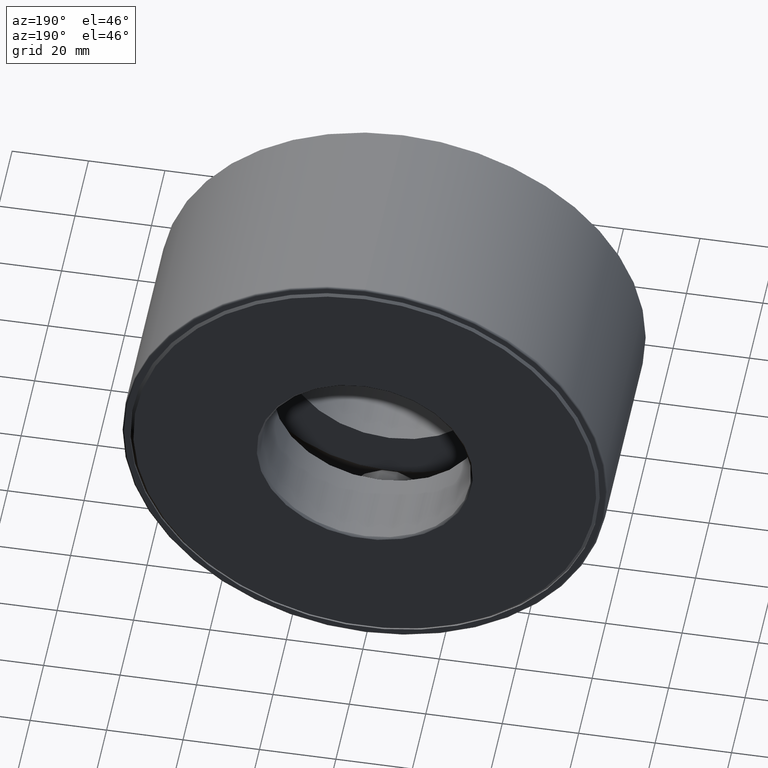
[diagram: clean part render]
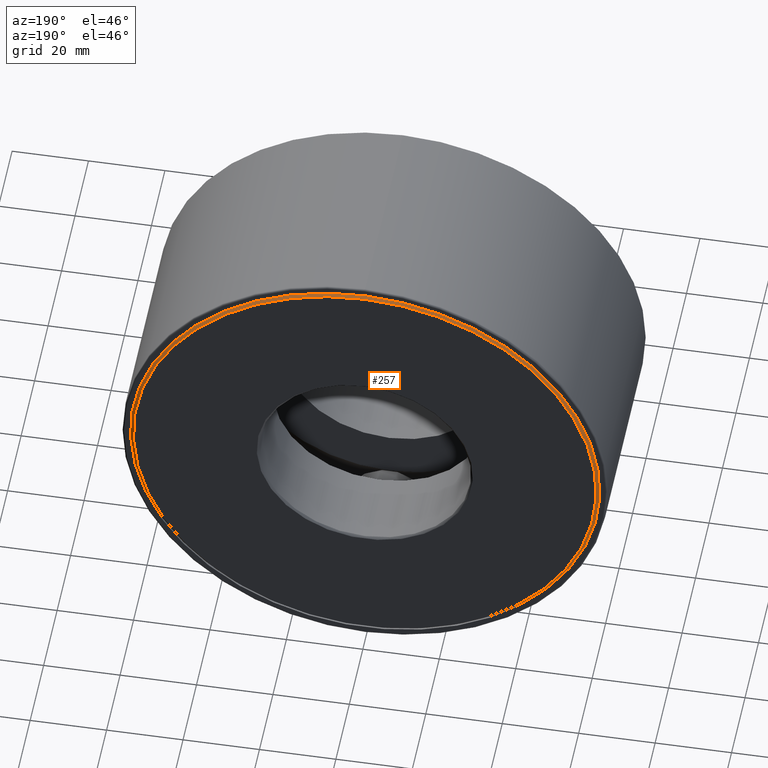
[diagram: same view with one face highlighted and labeled with its STEP entity id]
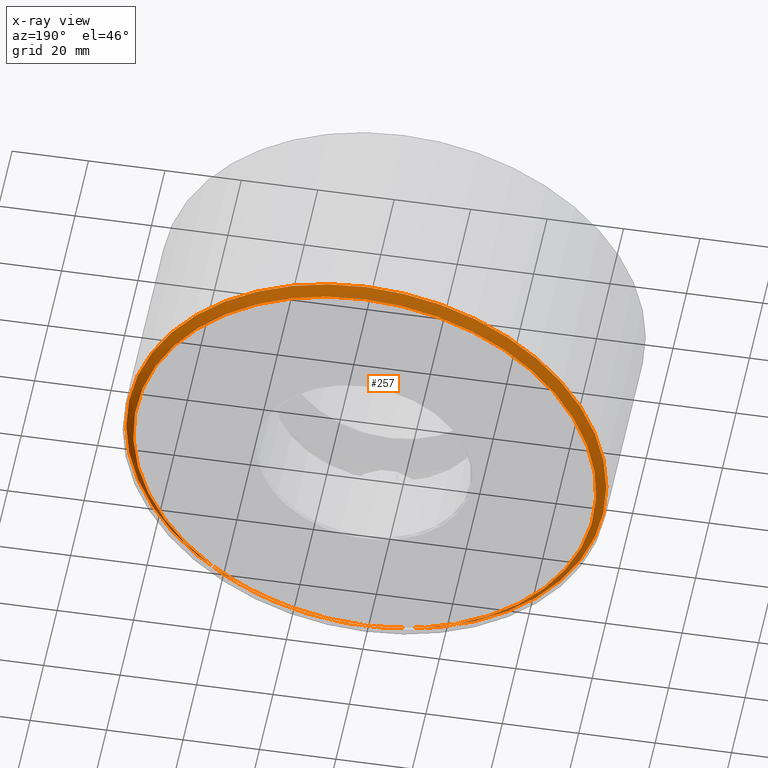
[diagram: x-ray of the same camera — body ghosted, the highlighted face saturated]
A machine part, auxiliary view. The second image highlights one B-rep face of the part: STEP entity #257.
The next image is the same camera in x-ray: the body ghosted, the highlighted face saturated — about 0% of this face is hidden behind the body in this view.
In plain terms, the highlighted conical surface has half-angle 45 deg.
Its self-contained STEP definition (entity closure, byte-faithful):
#11 = CARTESIAN_POINT ( 'NONE',  ( 0.0000000000000000000, 2.249999999999999600, 0.0000000000000000000 ) ) ;
#14 = DIRECTION ( 'NONE',  ( 0.0000000000000000000, 0.0000000000000000000, -1.000000000000000000 ) ) ;
#19 = EDGE_CURVE ( 'NONE', #521, #521, #329, .T. ) ;
#60 = DIRECTION ( 'NONE',  ( 0.0000000000000000000, -1.000000000000000000, 0.0000000000000000000 ) ) ;
#77 = AXIS2_PLACEMENT_3D ( 'NONE', #11, #60, #14 ) ;
#174 = EDGE_LOOP ( 'NONE', ( #543 ) ) ;
#191 = EDGE_LOOP ( 'NONE', ( #345 ) ) ;
#194 = DIRECTION ( 'NONE',  ( -0.0000000000000000000, 1.000000000000000000, -0.0000000000000000000 ) ) ;
#228 = CARTESIAN_POINT ( 'NONE',  ( 0.0000000000000000000, 2.249999999999999600, 0.0000000000000000000 ) ) ;
#237 = AXIS2_PLACEMENT_3D ( 'NONE', #228, #606, #406 ) ;
#252 = VERTEX_POINT ( 'NONE', #380 ) ;
#257 = ADVANCED_FACE ( 'NONE', ( #428, #354 ), #481, .T. ) ;
#329 = CIRCLE ( 'NONE', #499, 2.473000000000000300 ) ;
#345 = ORIENTED_EDGE ( 'NONE', *, *, #19, .T. ) ;
#354 = FACE_BOUND ( 'NONE', #174, .T. ) ;
#380 = CARTESIAN_POINT ( 'NONE',  ( 0.0000000000000000000, 2.249999999999999600, 2.385000000000000700 ) ) ;
#406 = DIRECTION ( 'NONE',  ( 0.0000000000000000000, 0.0000000000000000000, 1.000000000000000000 ) ) ;
#416 = DIRECTION ( 'NONE',  ( 0.0000000000000000000, 0.0000000000000000000, 1.000000000000000000 ) ) ;
#422 = CARTESIAN_POINT ( 'NONE',  ( 0.0000000000000000000, 2.162000000000000800, 2.473000000000000300 ) ) ;
#428 = FACE_OUTER_BOUND ( 'NONE', #191, .T. ) ;
#473 = EDGE_CURVE ( 'NONE', #252, #252, #580, .T. ) ;
#481 = CONICAL_SURFACE ( 'NONE', #77, 2.385000000000000700, 0.7853981633974498300 ) ;
#499 = AXIS2_PLACEMENT_3D ( 'NONE', #550, #194, #416 ) ;
#521 = VERTEX_POINT ( 'NONE', #422 ) ;
#543 = ORIENTED_EDGE ( 'NONE', *, *, #473, .F. ) ;
#550 = CARTESIAN_POINT ( 'NONE',  ( 0.0000000000000000000, 2.162000000000000800, 0.0000000000000000000 ) ) ;
#580 = CIRCLE ( 'NONE', #237, 2.385000000000000700 ) ;
#606 = DIRECTION ( 'NONE',  ( -0.0000000000000000000, 1.000000000000000000, -0.0000000000000000000 ) ) ;